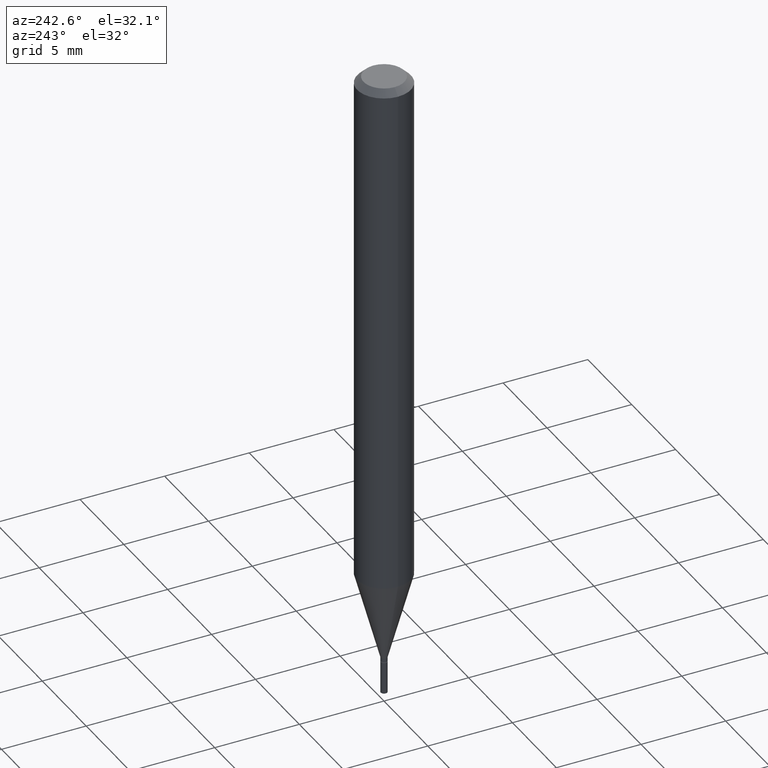
[diagram: clean part render]
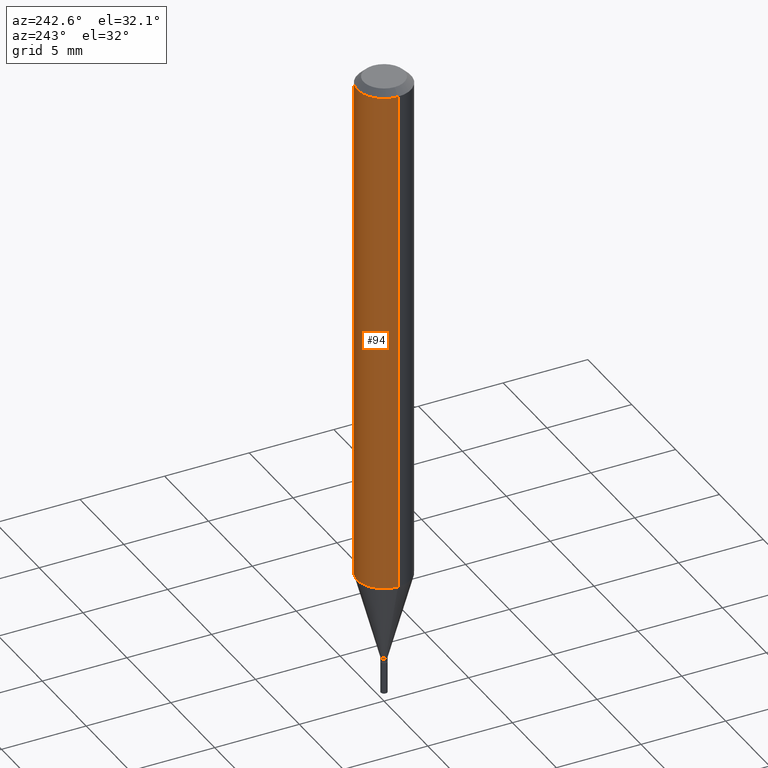
[diagram: same view with one face highlighted and labeled with its STEP entity id]
A machine part, auxiliary view. The second image highlights one B-rep face of the part: STEP entity #94.
In plain terms, the highlighted cylindrical surface (edge-blend (fillet) strip) has radius 1.5875 mm, axis along (-0, 0, 1).
Its self-contained STEP definition (entity closure, byte-faithful):
#7 = VERTEX_POINT ( 'NONE', #384 ) ;
#11 = CARTESIAN_POINT ( 'NONE',  ( 2.958374599936542913E-29, -4.223774878199784221E-15, -1.209737205583711894 ) ) ;
#14 = LINE ( 'NONE', #442, #451 ) ;
#19 = AXIS2_PLACEMENT_3D ( 'NONE', #11, #284, #465 ) ;
#33 = DIRECTION ( 'NONE',  ( -2.445468806185136597E-29, 3.491481338843145583E-15, 1.000000000000000000 ) ) ;
#42 = CARTESIAN_POINT ( 'NONE',  ( -0.06250000000000000000, -1.693984339291153034E-15, -0.01499999999999999944 ) ) ;
#46 = CARTESIAN_POINT ( 'NONE',  ( -0.06250000000000001388, -3.779685668349720027E-15, -1.209737205583711894 ) ) ;
#51 = FACE_OUTER_BOUND ( 'NONE', #315, .T. ) ;
#54 = VECTOR ( 'NONE', #64, 39.37007874015748143 ) ;
#64 = DIRECTION ( 'NONE',  ( -2.445468806185136877E-29, 3.491481338843145188E-15, 1.000000000000000000 ) ) ;
#89 = EDGE_CURVE ( 'NONE', #7, #220, #371, .T. ) ;
#94 = ADVANCED_FACE ( 'NONE', ( #51 ), #358, .T. ) ;
#128 = ORIENTED_EDGE ( 'NONE', *, *, #265, .T. ) ;
#157 = DIRECTION ( 'NONE',  ( -2.445468806185136597E-29, 3.491481338843145583E-15, 1.000000000000000000 ) ) ;
#162 = VERTEX_POINT ( 'NONE', #286 ) ;
#171 = VERTEX_POINT ( 'NONE', #42 ) ;
#178 = CARTESIAN_POINT ( 'NONE',  ( 3.668203209277705088E-31, -5.237222008264718399E-17, -0.01499999999999999944 ) ) ;
#194 = ORIENTED_EDGE ( 'NONE', *, *, #412, .F. ) ;
#206 = CIRCLE ( 'NONE', #301, 0.06250000000000000000 ) ;
#207 = CARTESIAN_POINT ( 'NONE',  ( 0.06250000000000000000, -4.364351673553916694E-16, 3.047610484872459871E-30 ) ) ;
#220 = VERTEX_POINT ( 'NONE', #46 ) ;
#243 = DIRECTION ( 'NONE',  ( 1.000000000000000000, -6.982962677686266711E-15, 0.000000000000000000 ) ) ;
#265 = EDGE_CURVE ( 'NONE', #220, #171, #14, .T. ) ;
#269 = DIRECTION ( 'NONE',  ( -2.445468806185136877E-29, 3.491481338843145188E-15, 1.000000000000000000 ) ) ;
#277 = ORIENTED_EDGE ( 'NONE', *, *, #420, .F. ) ;
#284 = DIRECTION ( 'NONE',  ( -2.445468806185136597E-29, 3.491481338843145583E-15, 1.000000000000000000 ) ) ;
#286 = CARTESIAN_POINT ( 'NONE',  ( 0.06250000000000000000, -4.888073874380388472E-16, -0.01499999999999999944 ) ) ;
#301 = AXIS2_PLACEMENT_3D ( 'NONE', #178, #33, #243 ) ;
#315 = EDGE_LOOP ( 'NONE', ( #421, #128, #277, #194 ) ) ;
#358 = CYLINDRICAL_SURFACE ( 'NONE', #456, 0.06250000000000000000 ) ;
#371 = CIRCLE ( 'NONE', #19, 0.06250000000000000000 ) ;
#377 = LINE ( 'NONE', #207, #54 ) ;
#384 = CARTESIAN_POINT ( 'NONE',  ( 0.06250000000000001388, -4.660210045555175101E-15, -1.209737205583711894 ) ) ;
#395 = CARTESIAN_POINT ( 'NONE',  ( 0.000000000000000000, 0.000000000000000000, 0.000000000000000000 ) ) ;
#412 = EDGE_CURVE ( 'NONE', #7, #162, #377, .T. ) ;
#420 = EDGE_CURVE ( 'NONE', #162, #171, #206, .T. ) ;
#421 = ORIENTED_EDGE ( 'NONE', *, *, #89, .T. ) ;
#433 = DIRECTION ( 'NONE',  ( 1.000000000000000000, -6.982962677686266711E-15, 4.876176775795935793E-29 ) ) ;
#442 = CARTESIAN_POINT ( 'NONE',  ( -0.06250000000000000000, 4.440892098500626162E-16, -3.074334431409316114E-30 ) ) ;
#451 = VECTOR ( 'NONE', #269, 39.37007874015748143 ) ;
#456 = AXIS2_PLACEMENT_3D ( 'NONE', #395, #157, #433 ) ;
#465 = DIRECTION ( 'NONE',  ( 1.000000000000000000, -6.982962677686270655E-15, 0.000000000000000000 ) ) ;